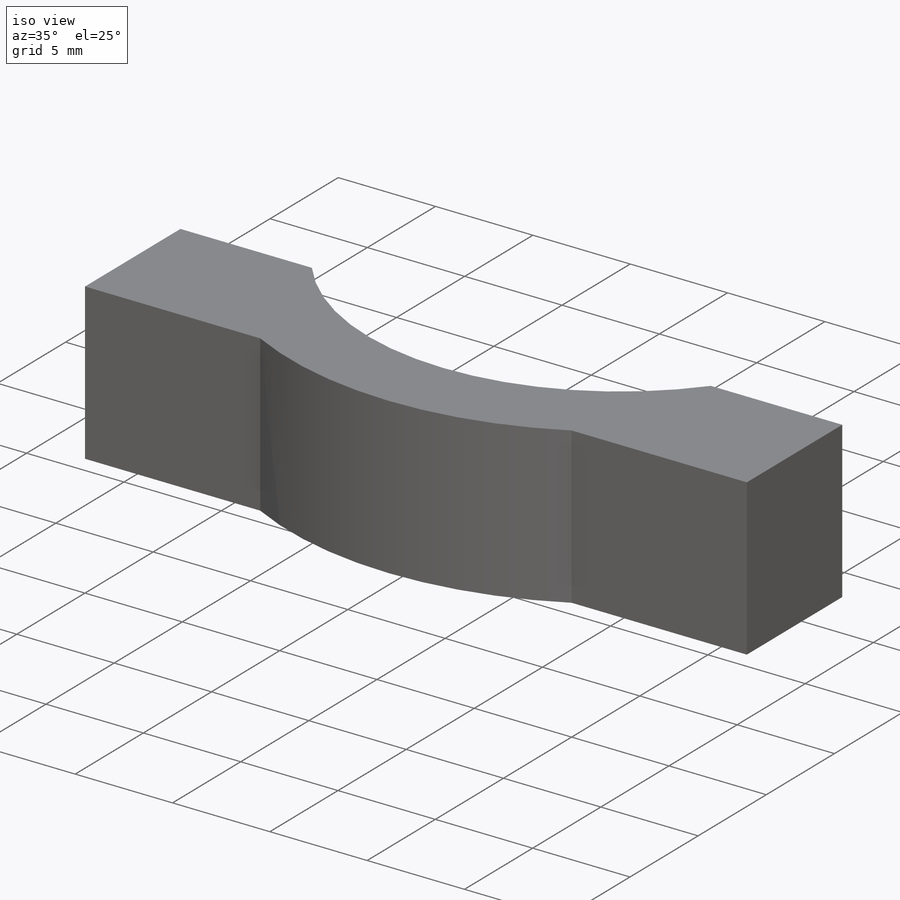
[diagram: iso view]
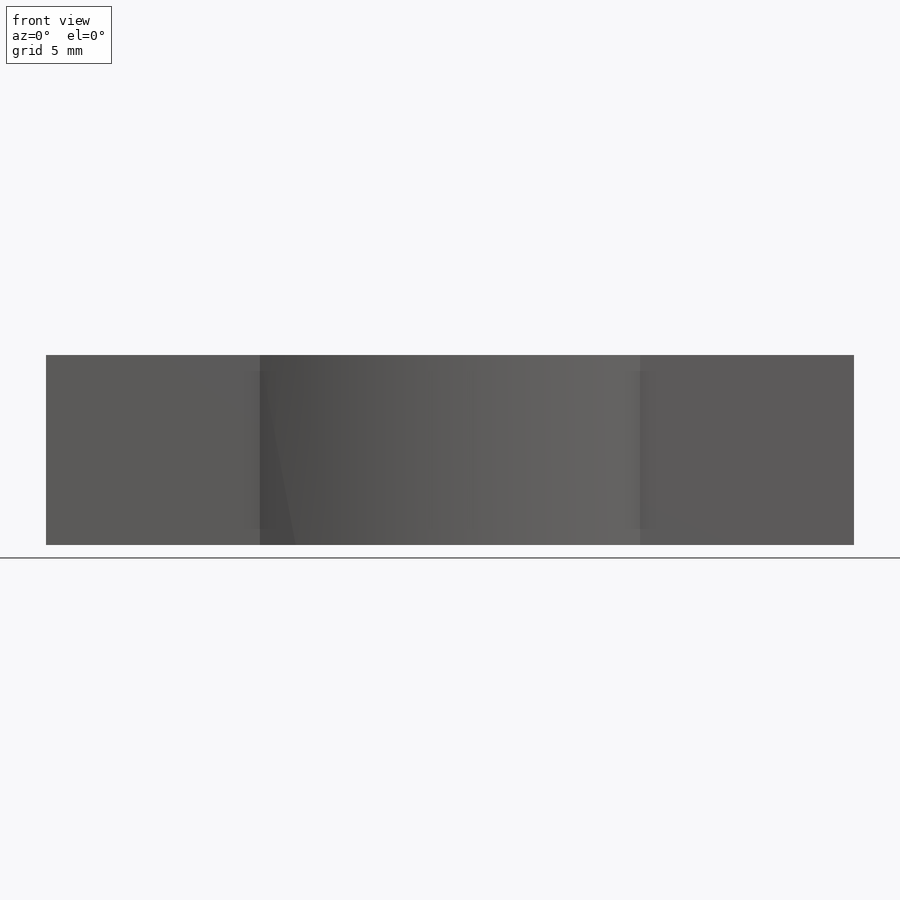
[diagram: front view]
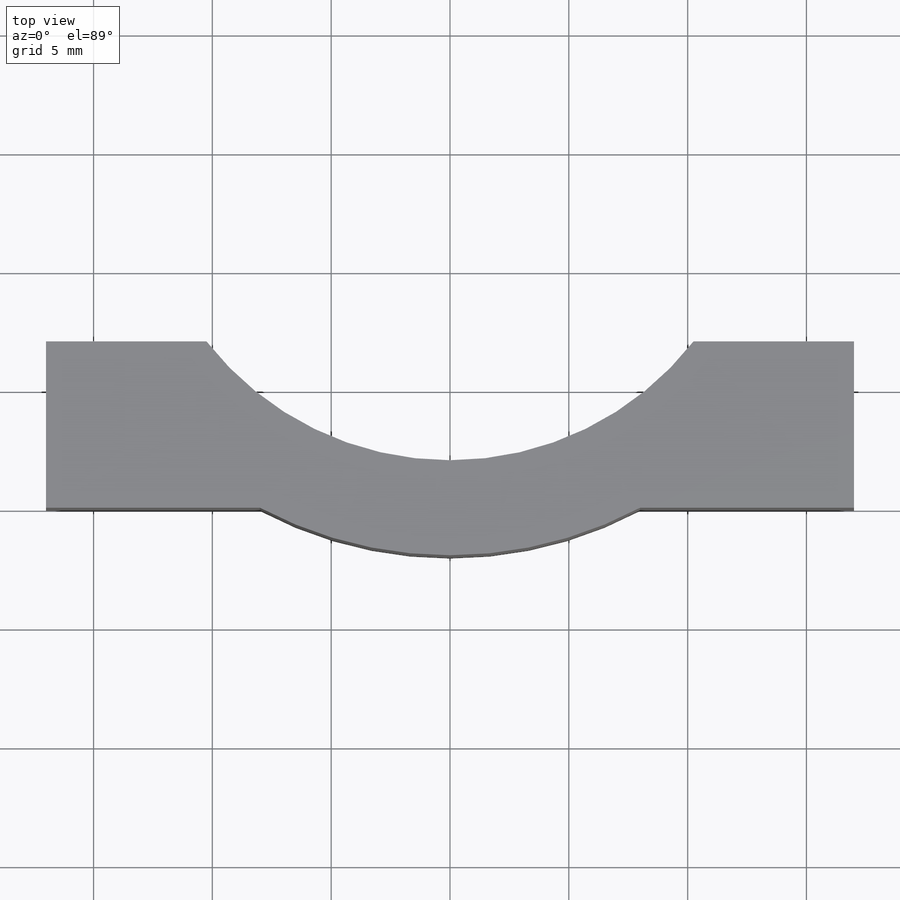
[diagram: top view]
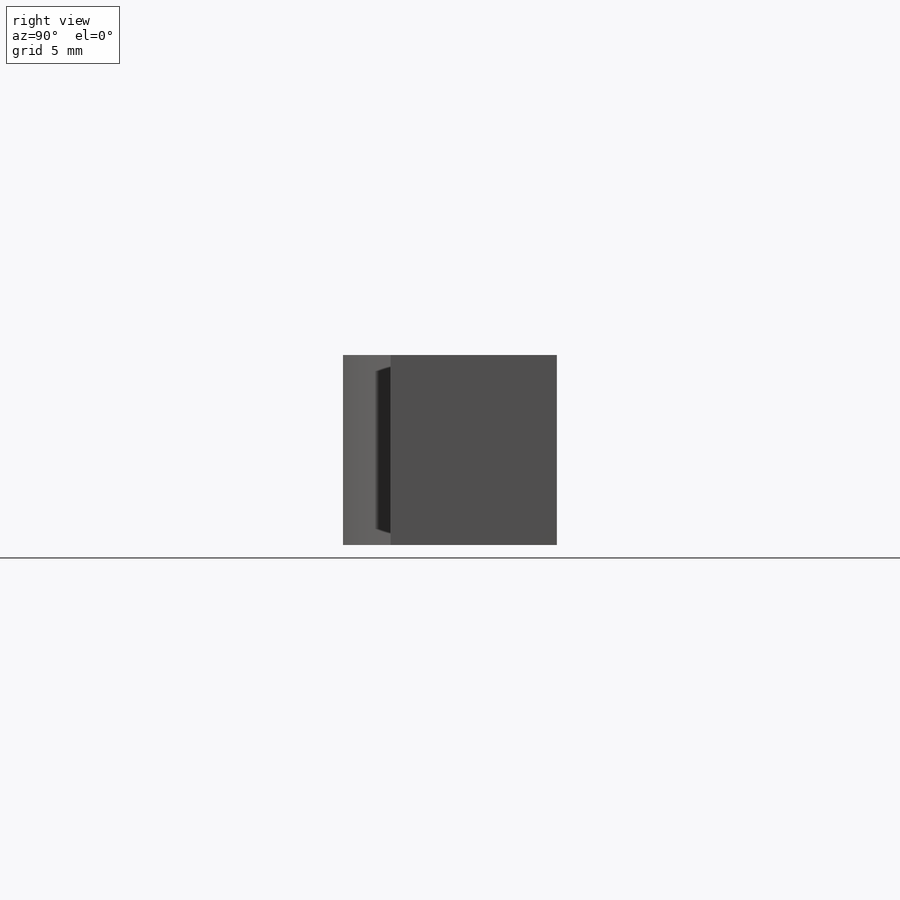
[diagram: right view]
SOLIDWORKS PART (.sldprt)
format: sldprt  version: not decoded by parser v0  size: 154,112 bytes
history: native  units: mm
features: sketch x4, extrude x2, cut_extrude x2, material x1 (+12 scaffold rows collapsed)
feature tree (21):
  scaffold x12  (default folders/planes/origin — collapsed)
  material  "재질 <지정안함>"
  sketch  "스케치3"  dims[D1=34.0mm]
  extrude  "보스-돌출2"  Depth=8mm
  sketch  "스케치6"  dims[D1=15.0mm]
  extrude  "보스-돌출3"  Depth=8mm
  sketch  "스케치4"  dims[D1=~8.432091mm]
  cut_extrude  "컷-돌출1"  Depth=8mm
  sketch  "스케치5"  dims[D1=8.0mm]
  cut_extrude  "컷-돌출2"  Depth=8mm
decode coverage: 8 of 8 modeling features carry decoded parameters
note: ~ marks probable driven/reference dimensions
note: suppression state not decoded; provenance and decode notes live in map.json
